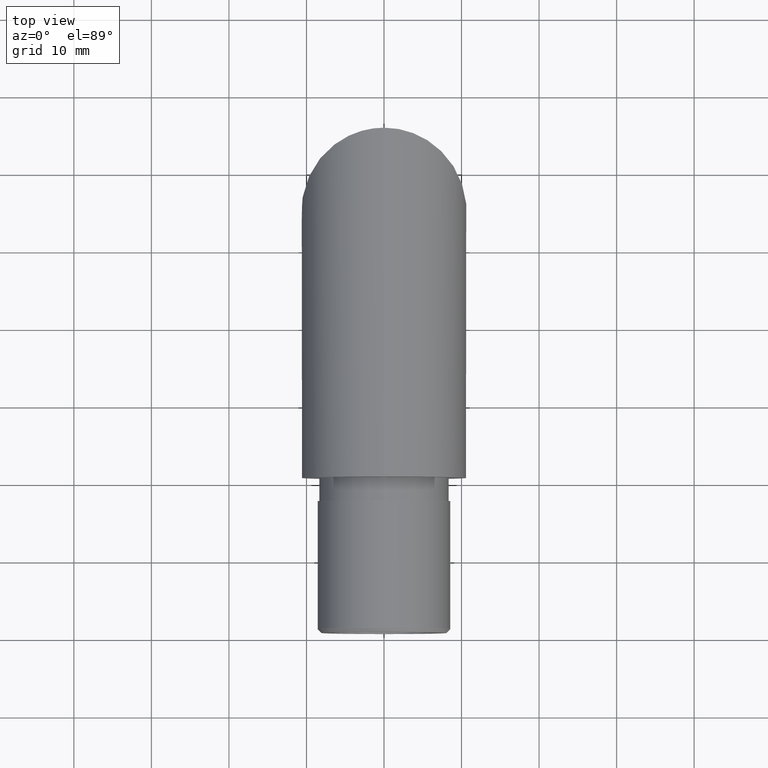
[diagram: clean part render]
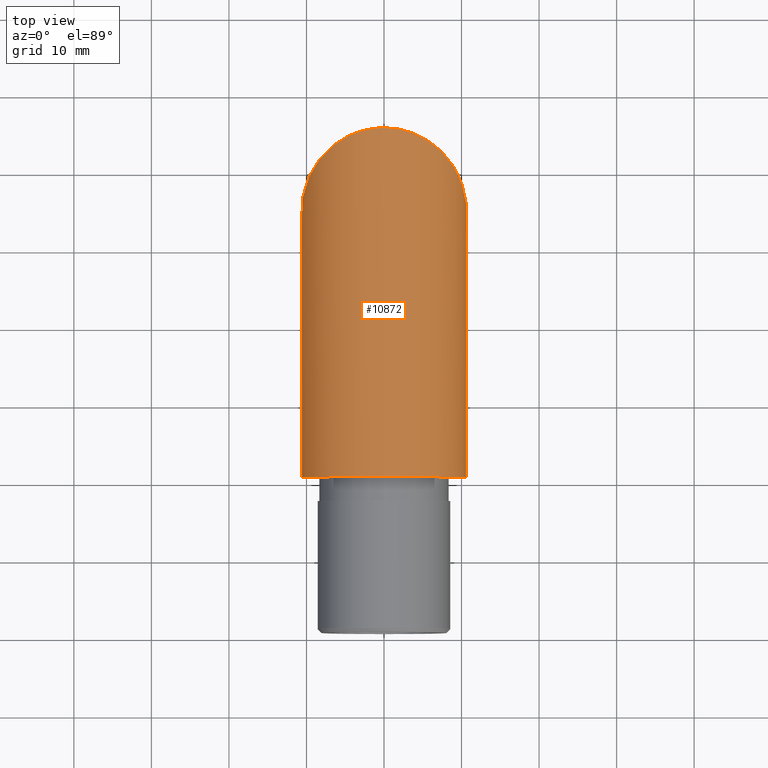
[diagram: same view with one face highlighted and labeled with its STEP entity id]
A machine part, top view. The second image highlights one B-rep face of the part: STEP entity #10872.
In plain terms, the highlighted cylindrical surface (bore or boss wall) has radius 10.65 mm, axis along (-0, -1, -0).
Its self-contained STEP definition (entity closure, byte-faithful):
#204 = CARTESIAN_POINT ( 'NONE',  ( 0.0000000000000000000, 23.69999999999995700, -10.65000000000000000 ) ) ;
#368 = CARTESIAN_POINT ( 'NONE',  ( 21.29999999999999700, 45.00000000000002800, 10.65000000000000400 ) ) ;
#375 = VERTEX_POINT ( 'NONE', #5280 ) ;
#664 = ORIENTED_EDGE ( 'NONE', *, *, #4769, .T. ) ;
#715 = CARTESIAN_POINT ( 'NONE',  ( 0.0000000000000000000, 0.0000000000000000000, 10.65000000000000000 ) ) ;
#811 = FACE_OUTER_BOUND ( 'NONE', #2052, .T. ) ;
#862 = DIRECTION ( 'NONE',  ( 0.0000000000000000000, 0.0000000000000000000, 1.000000000000000000 ) ) ;
#2052 = EDGE_LOOP ( 'NONE', ( #8838 ) ) ;
#2987 = AXIS2_PLACEMENT_3D ( 'NONE', #3244, #7777, #9927 ) ;
#3244 = CARTESIAN_POINT ( 'NONE',  ( 0.0000000000000000000, 64.47274887854692300, 0.0000000000000000000 ) ) ;
#3598 = EDGE_CURVE ( 'NONE', #375, #375, #4746, .T. ) ;
#3613 = CARTESIAN_POINT ( 'NONE',  ( 0.0000000000000000000, 0.0000000000000000000, 0.0000000000000000000 ) ) ;
#3876 = CARTESIAN_POINT ( 'NONE',  ( 0.0000000000000000000, 23.69999999999995700, -10.65000000000000000 ) ) ;
#4746 =( BOUNDED_CURVE ( )  B_SPLINE_CURVE ( 3, ( #3876, #7588, #9459, #6776, #368, #4928, #204 ),
 .UNSPECIFIED., .T., .F. ) 
 B_SPLINE_CURVE_WITH_KNOTS ( ( 4, 3, 4 ),
 ( 0.0000000000000000000, 3.141592653589793100, 6.283185307179586200 ),
 .UNSPECIFIED. ) 
 CURVE ( )  GEOMETRIC_REPRESENTATION_ITEM ( )  RATIONAL_B_SPLINE_CURVE ( ( 1.000000000000000000, 0.3333333333333333700, 0.3333333333333333700, 1.000000000000000000, 0.3333333333333333700, 0.3333333333333333700, 1.000000000000000000 ) ) 
 REPRESENTATION_ITEM ( '' )  );
#4769 = EDGE_CURVE ( 'NONE', #5149, #5149, #8732, .T. ) ;
#4928 = CARTESIAN_POINT ( 'NONE',  ( 21.29999999999999700, 23.69999999999995700, -10.65000000000000000 ) ) ;
#5149 = VERTEX_POINT ( 'NONE', #715 ) ;
#5280 = CARTESIAN_POINT ( 'NONE',  ( 0.0000000000000000000, 23.69999999999995700, -10.65000000000000000 ) ) ;
#5465 = DIRECTION ( 'NONE',  ( 0.0000000000000000000, 1.000000000000000000, 0.0000000000000000000 ) ) ;
#6190 = AXIS2_PLACEMENT_3D ( 'NONE', #3613, #5465, #862 ) ;
#6776 = CARTESIAN_POINT ( 'NONE',  ( -1.304248841091931300E-015, 45.00000000000002800, 10.65000000000000000 ) ) ;
#7588 = CARTESIAN_POINT ( 'NONE',  ( -21.29999999999999700, 23.69999999999995700, -10.65000000000000000 ) ) ;
#7755 = FACE_OUTER_BOUND ( 'NONE', #8966, .T. ) ;
#7777 = DIRECTION ( 'NONE',  ( -0.0000000000000000000, -1.000000000000000000, -0.0000000000000000000 ) ) ;
#8732 = CIRCLE ( 'NONE', #6190, 10.65000000000000000 ) ;
#8838 = ORIENTED_EDGE ( 'NONE', *, *, #3598, .F. ) ;
#8966 = EDGE_LOOP ( 'NONE', ( #664 ) ) ;
#9459 = CARTESIAN_POINT ( 'NONE',  ( -21.29999999999999700, 45.00000000000002800, 10.64999999999999700 ) ) ;
#9927 = DIRECTION ( 'NONE',  ( 0.0000000000000000000, 0.0000000000000000000, -1.000000000000000000 ) ) ;
#10047 = CYLINDRICAL_SURFACE ( 'NONE', #2987, 10.65000000000000000 ) ;
#10872 = ADVANCED_FACE ( 'NONE', ( #7755, #811 ), #10047, .T. ) ;